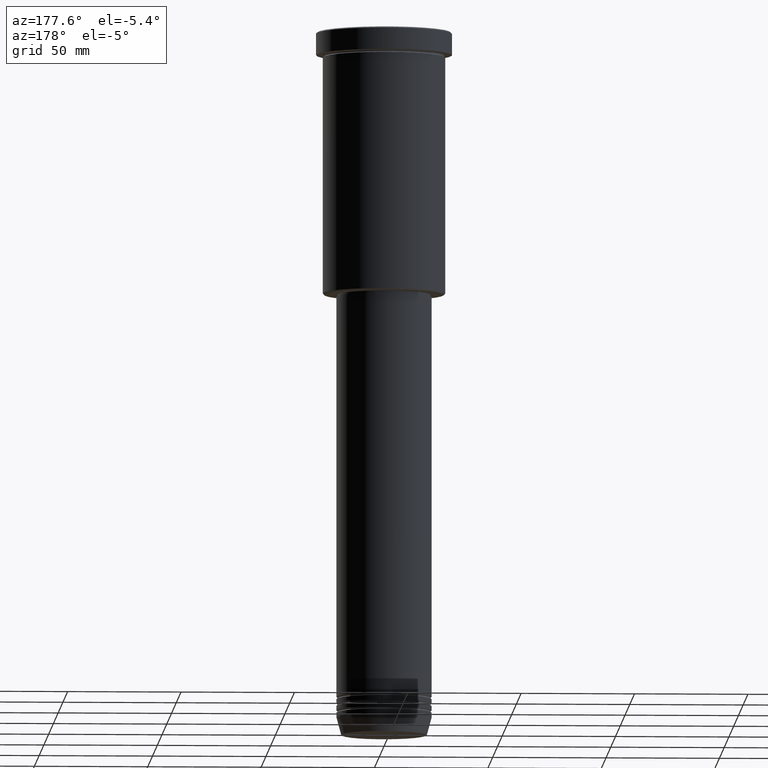
[diagram: clean part render]
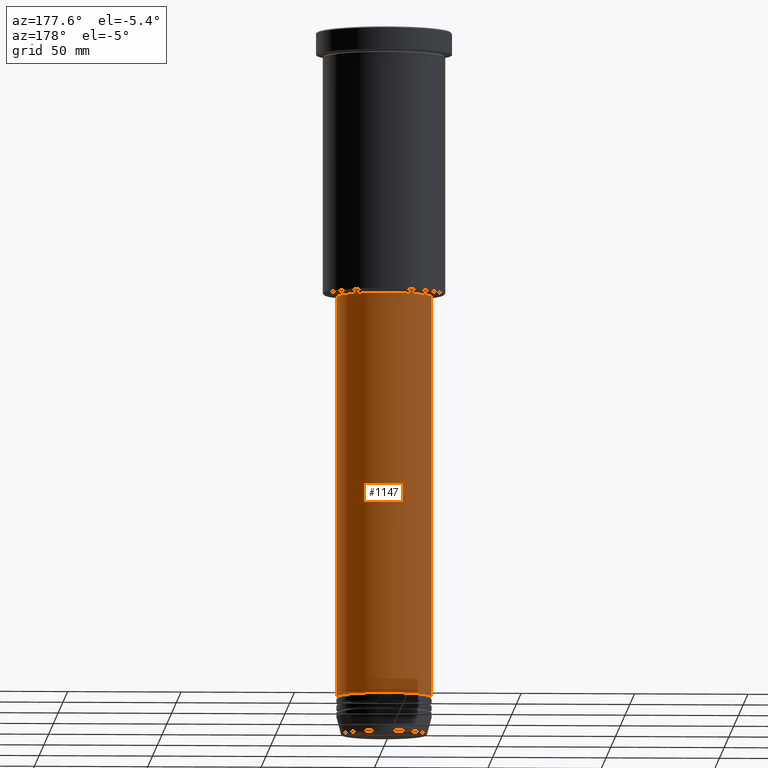
[diagram: same view with one face highlighted and labeled with its STEP entity id]
A machine part, auxiliary view. The second image highlights one B-rep face of the part: STEP entity #1147.
In plain terms, the highlighted cylindrical surface (partial cylindrical patch) has radius 21 mm, axis along (-0, -0, 1).
Its self-contained STEP definition (entity closure, byte-faithful):
#2 = LINE ( 'NONE', #747, #829 ) ;
#45 = ORIENTED_EDGE ( 'NONE', *, *, #361, .F. ) ;
#71 = CARTESIAN_POINT ( 'NONE',  ( -21.00000000000000000, 2.571758278209441661E-15, 0.000000000000000000 ) ) ;
#77 = CARTESIAN_POINT ( 'NONE',  ( 0.000000000000000000, 0.000000000000000000, 0.000000000000000000 ) ) ;
#142 = ORIENTED_EDGE ( 'NONE', *, *, #819, .F. ) ;
#176 = EDGE_CURVE ( 'NONE', #1049, #182, #538, .T. ) ;
#182 = VERTEX_POINT ( 'NONE', #211 ) ;
#192 = CIRCLE ( 'NONE', #741, 21.00000000000000000 ) ;
#211 = CARTESIAN_POINT ( 'NONE',  ( -21.00000000000000000, 2.571758278209441661E-15, -116.9999999999999147 ) ) ;
#222 = CIRCLE ( 'NONE', #249, 21.00000000000000000 ) ;
#249 = AXIS2_PLACEMENT_3D ( 'NONE', #1127, #681, #499 ) ;
#274 = CARTESIAN_POINT ( 'NONE',  ( 21.00000000000000000, 0.000000000000000000, -294.0000000000000000 ) ) ;
#283 = DIRECTION ( 'NONE',  ( -0.000000000000000000, -0.000000000000000000, 1.000000000000000000 ) ) ;
#316 = CYLINDRICAL_SURFACE ( 'NONE', #518, 21.00000000000000000 ) ;
#361 = EDGE_CURVE ( 'NONE', #968, #182, #222, .T. ) ;
#405 = FACE_OUTER_BOUND ( 'NONE', #644, .T. ) ;
#424 = ORIENTED_EDGE ( 'NONE', *, *, #1167, .T. ) ;
#432 = VECTOR ( 'NONE', #981, 1000.000000000000000 ) ;
#435 = DIRECTION ( 'NONE',  ( -0.000000000000000000, -0.000000000000000000, 1.000000000000000000 ) ) ;
#499 = DIRECTION ( 'NONE',  ( 1.000000000000000000, 0.000000000000000000, 0.000000000000000000 ) ) ;
#518 = AXIS2_PLACEMENT_3D ( 'NONE', #77, #435, #871 ) ;
#523 = DIRECTION ( 'NONE',  ( 1.000000000000000000, 0.000000000000000000, 0.000000000000000000 ) ) ;
#538 = LINE ( 'NONE', #71, #432 ) ;
#644 = EDGE_LOOP ( 'NONE', ( #424, #768, #45, #142 ) ) ;
#681 = DIRECTION ( 'NONE',  ( -0.000000000000000000, -0.000000000000000000, 1.000000000000000000 ) ) ;
#688 = CARTESIAN_POINT ( 'NONE',  ( 0.000000000000000000, 0.000000000000000000, -294.0000000000000000 ) ) ;
#741 = AXIS2_PLACEMENT_3D ( 'NONE', #688, #817, #523 ) ;
#747 = CARTESIAN_POINT ( 'NONE',  ( 21.00000000000000000, 0.000000000000000000, 0.000000000000000000 ) ) ;
#768 = ORIENTED_EDGE ( 'NONE', *, *, #176, .T. ) ;
#807 = VERTEX_POINT ( 'NONE', #274 ) ;
#817 = DIRECTION ( 'NONE',  ( -0.000000000000000000, -0.000000000000000000, 1.000000000000000000 ) ) ;
#819 = EDGE_CURVE ( 'NONE', #807, #968, #2, .T. ) ;
#829 = VECTOR ( 'NONE', #283, 1000.000000000000000 ) ;
#871 = DIRECTION ( 'NONE',  ( 1.000000000000000000, 0.000000000000000000, 0.000000000000000000 ) ) ;
#927 = CARTESIAN_POINT ( 'NONE',  ( 21.00000000000000000, 0.000000000000000000, -116.9999999999999147 ) ) ;
#968 = VERTEX_POINT ( 'NONE', #927 ) ;
#981 = DIRECTION ( 'NONE',  ( -0.000000000000000000, -0.000000000000000000, 1.000000000000000000 ) ) ;
#982 = CARTESIAN_POINT ( 'NONE',  ( -21.00000000000000000, 2.571758278209441661E-15, -294.0000000000000000 ) ) ;
#1049 = VERTEX_POINT ( 'NONE', #982 ) ;
#1127 = CARTESIAN_POINT ( 'NONE',  ( 0.000000000000000000, 0.000000000000000000, -116.9999999999999147 ) ) ;
#1147 = ADVANCED_FACE ( 'NONE', ( #405 ), #316, .T. ) ;
#1167 = EDGE_CURVE ( 'NONE', #807, #1049, #192, .T. ) ;